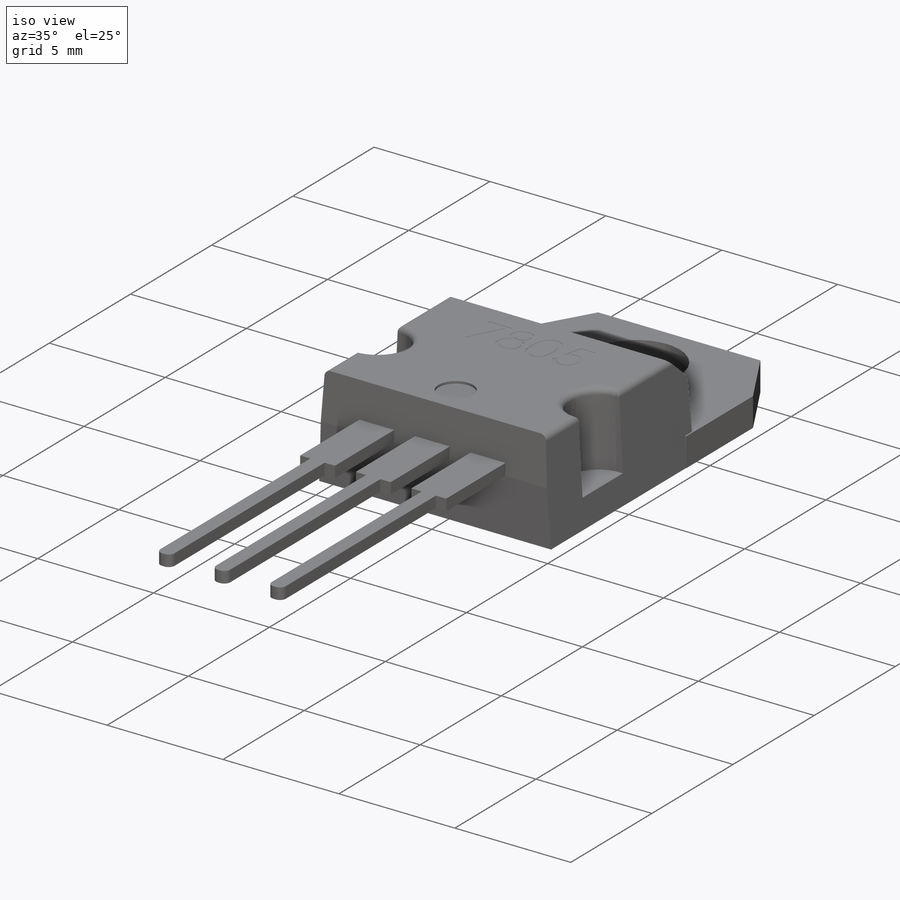
[diagram: iso view]
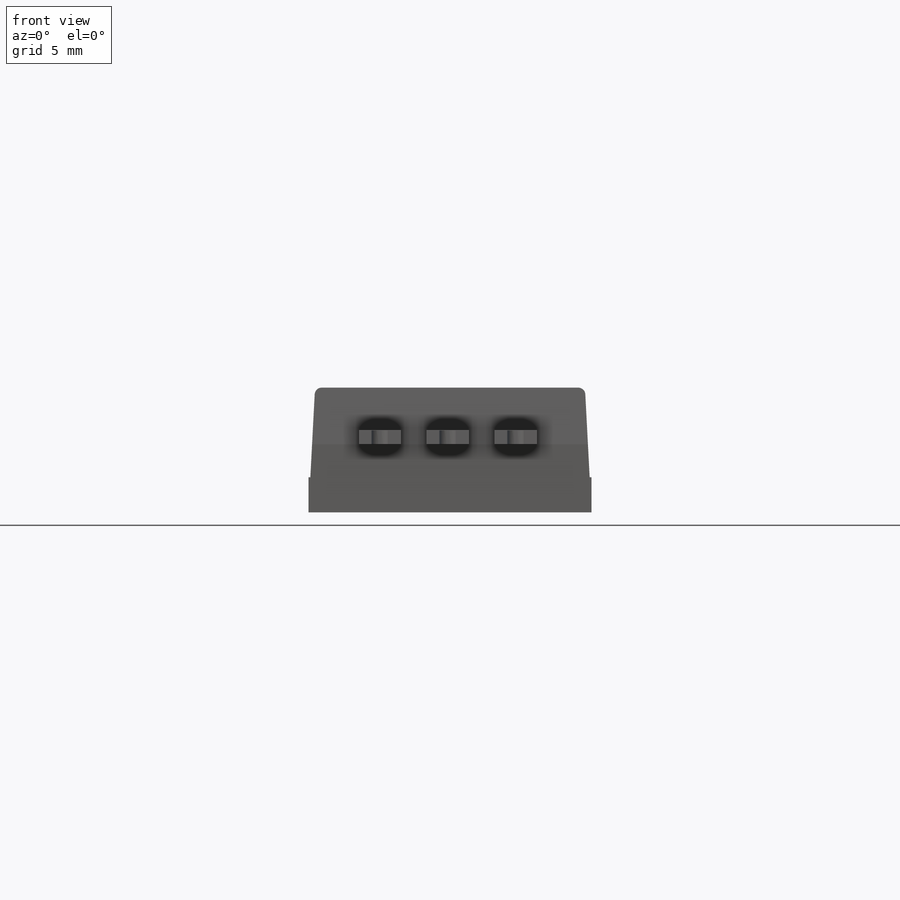
[diagram: front view]
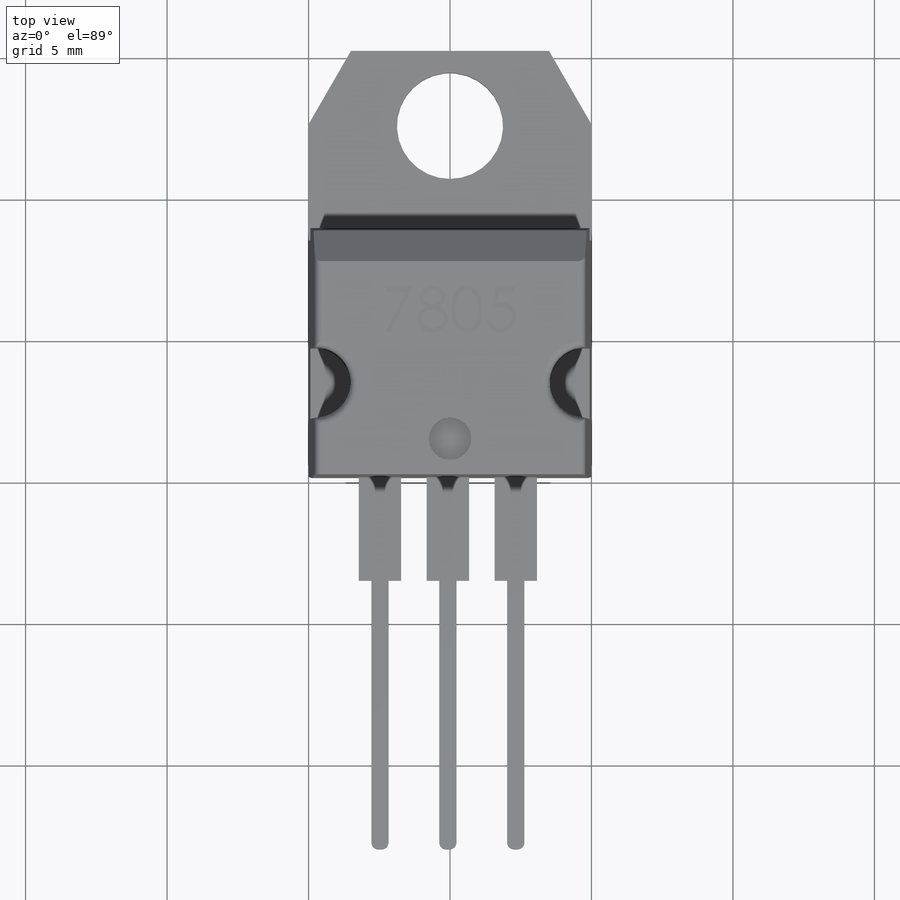
[diagram: top view]
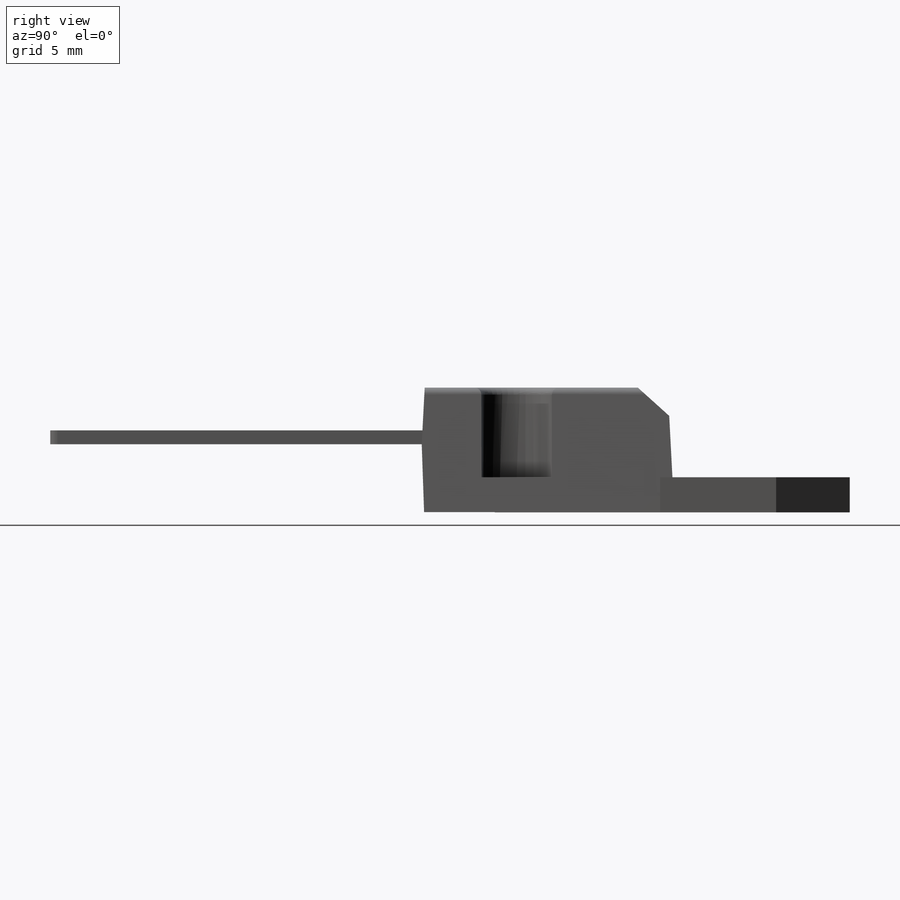
[diagram: right view]
SOLIDWORKS PART (.sldprt)
format: sldprt  version: not decoded by parser v0  size: 467,456 bytes
history: native  units: mm
features: sketch x7, extrude x4, chamfer x4, fillet x4, cut_extrude x3, pattern_linear x2, material x1 (+13 scaffold rows collapsed)
feature tree (38):
  scaffold x13  (default folders/planes/origin — collapsed)
  material  "Material <not specified>"
  sketch  "Sketch1"  dims[D1=9.05mm D2=10.0mm]
  extrude  "Boss-Extrude1"  Depth=4.4mm
  chamfer  "Chamfer2"  Distance=1mm Angle=45deg
  sketch  "Sketch2"  dims[D2=2.5mm D1=3.25mm]
  cut_extrude  "Cut-Extrude1"  Depth=3.17mm
  fillet  "Fillet1"  Radius=0.25mm
  sketch  "Sketch3"  dims[D2=1.5mm D1=1.25mm]
  cut_extrude  "Cut-Extrude2"  Depth=0.1mm
  chamfer  "Chamfer3"  Distance=2.4mm Angle=5deg
  sketch  "Sketch5"  dims[D1=1.5mm D2=0.49mm D3=1.775mm D4=10.0mm]
  extrude  "Boss-Extrude3"  Depth=3.5mm
  pattern_linear  "LPattern2"  Count1=3 Count2=1 Spacing1=2.4mm Spacing2=10mm
  sketch  "Sketch6"  dims[c1.D4=0.49mm c1.D2=0.305mm c1.D3=0.305mm c2.D4=0.49mm c2.D1=0.0mm c2.D2=0.305mm c2.D3=0.305mm]
  extrude  "Boss-Extrude4"  Depth=9.5mm
  pattern_linear  "LPattern4"  Count1=3 Count2=1 Spacing1=2.4mm Spacing2=10mm
  fillet  "Fillet2"  Radius=0.25mm
  fillet  "Fillet3"  Radius=0.25mm
  fillet  "Fillet4"  Radius=0.25mm
  sketch  "Sketch7"  dims[c1.D5=~3.00056mm c1.D6=3.75mm c1.D1=2.5mm c1.D2=1.0mm c1.D3=1.0mm c1.D4=6.2mm c2.D5=2.65mm c2.D7=0.5mm c2.D4=6.2mm]
  extrude  "Boss-Extrude5"  Depth=1.23mm
  chamfer  "Chamfer6"  Distance=1.5mm Angle=60deg
  chamfer  "Chamfer7"  Distance=1.5mm Angle=60deg
  sketch  "Sketch8"
  cut_extrude  "Cut-Extrude3"  Depth=0.01mm
decode coverage: 23 of 24 modeling features carry decoded parameters
note: ~ marks probable driven/reference dimensions
note: suppression state not decoded; provenance and decode notes live in map.json
